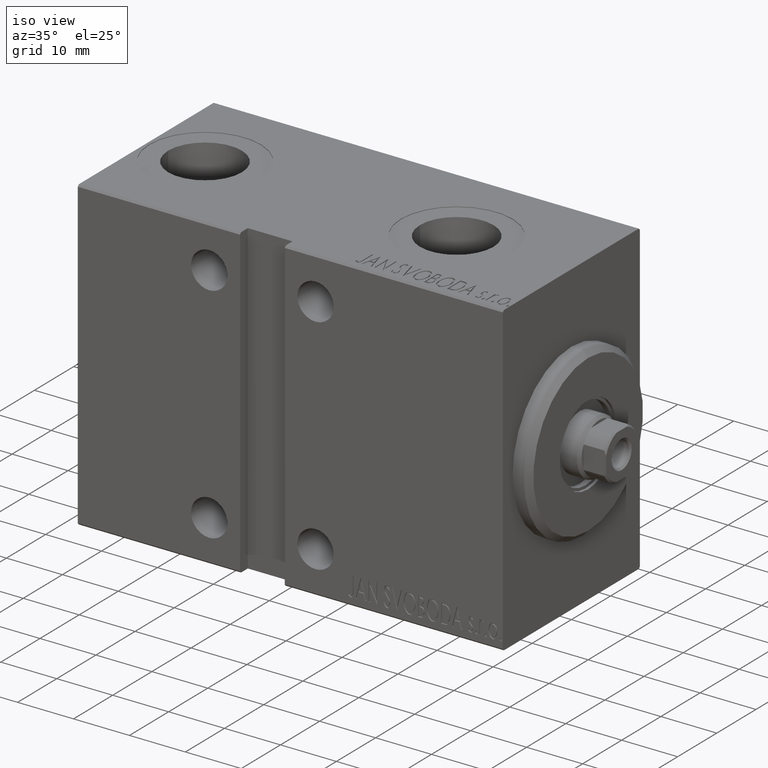
[diagram: clean part render]
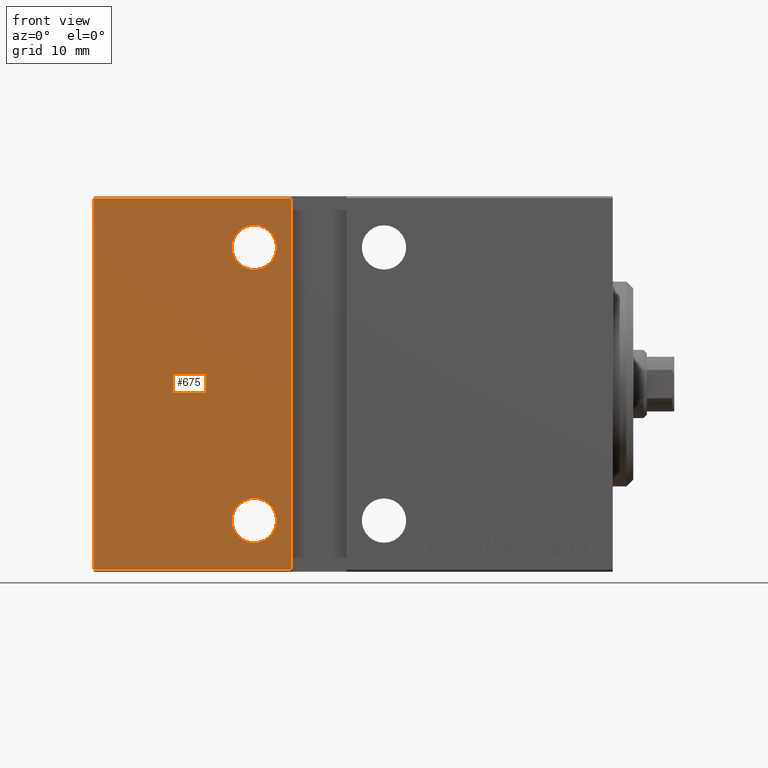
[diagram: tour spotlight — one face highlighted and labeled with its STEP entity id]
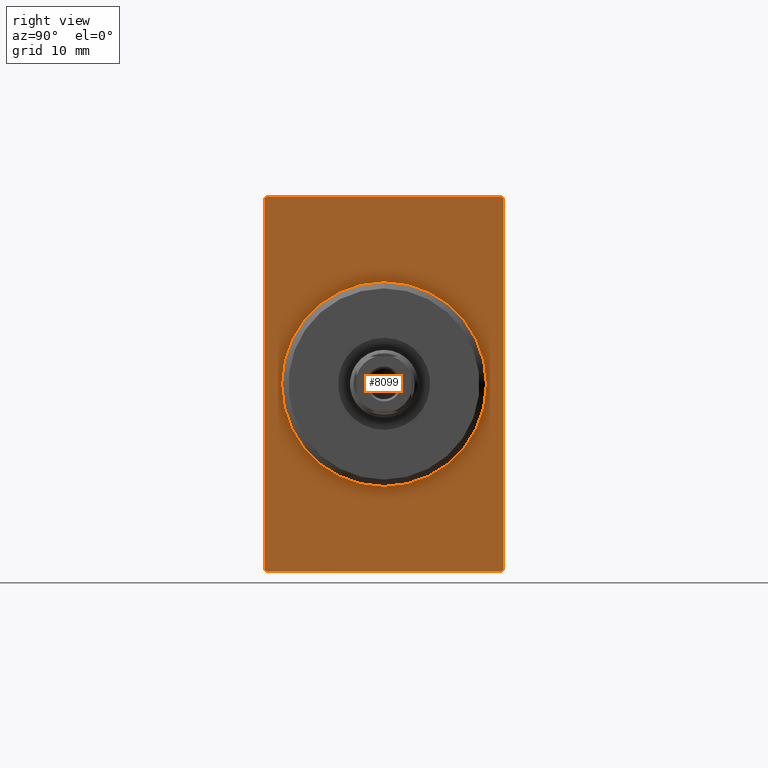
[diagram: tour spotlight — one face highlighted and labeled with its STEP entity id]
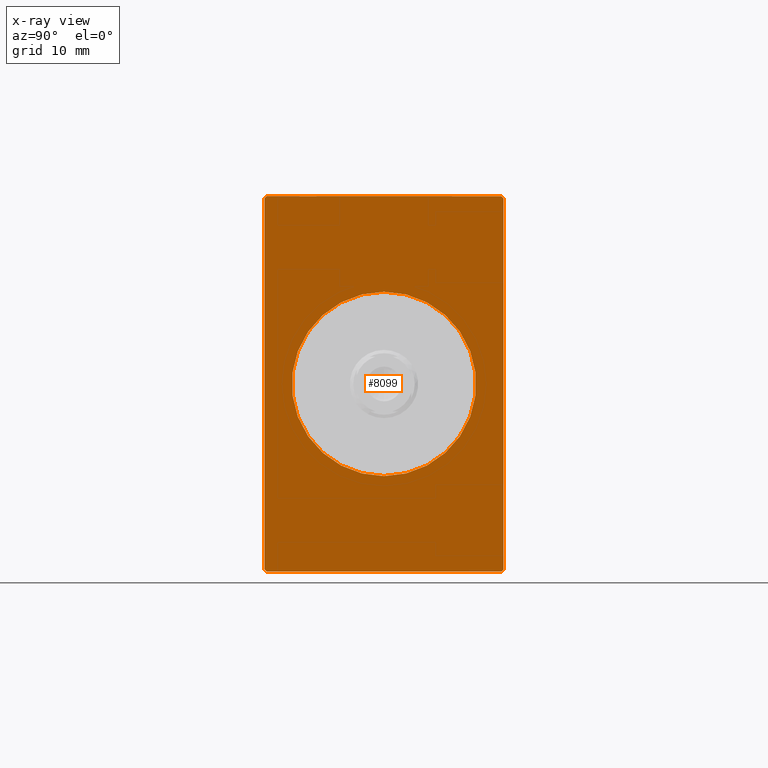
[diagram: x-ray of the same camera — body ghosted, this tour face saturated]
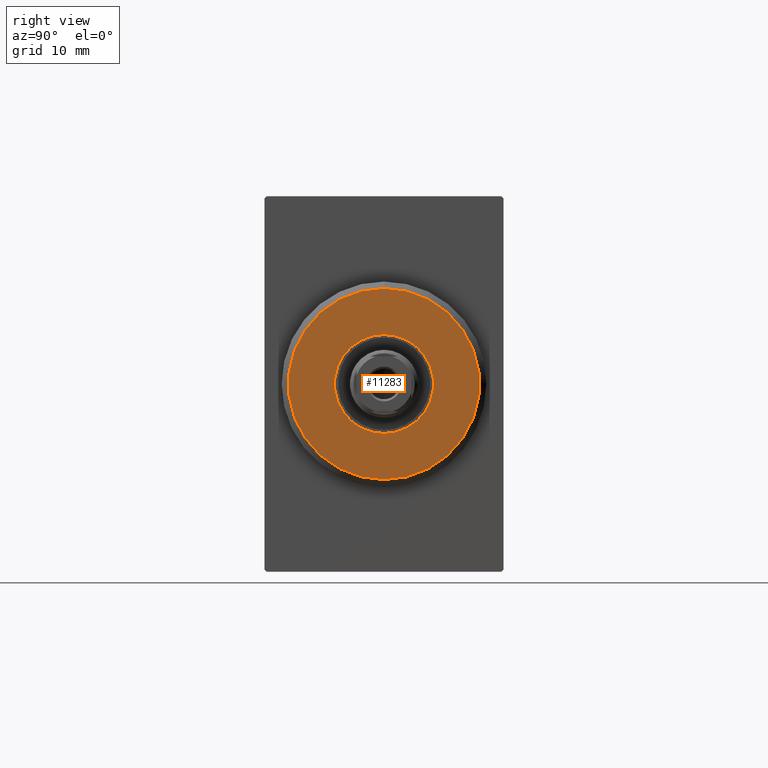
[diagram: tour spotlight — one face highlighted and labeled with its STEP entity id]
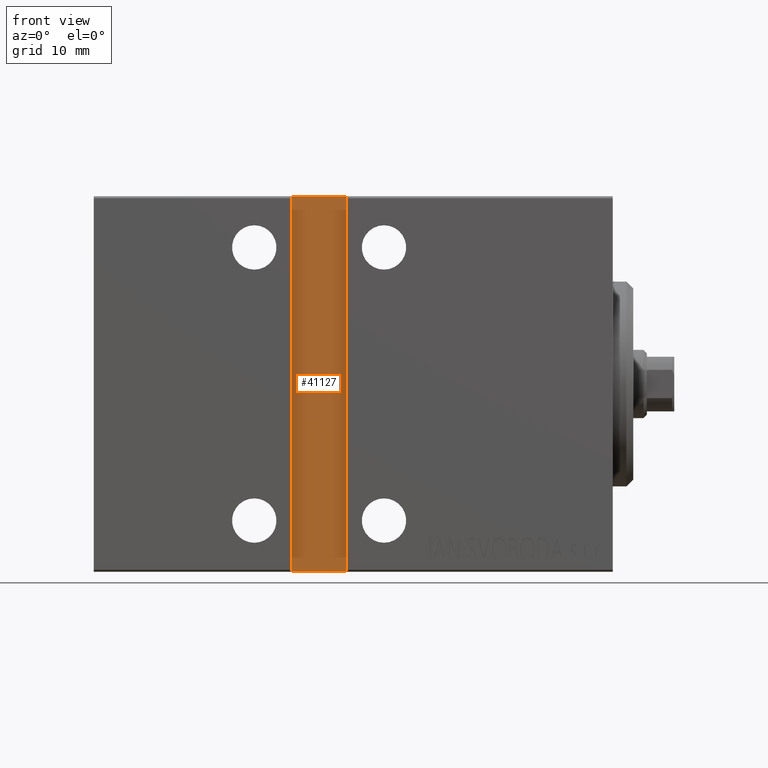
[diagram: tour spotlight — one face highlighted and labeled with its STEP entity id]
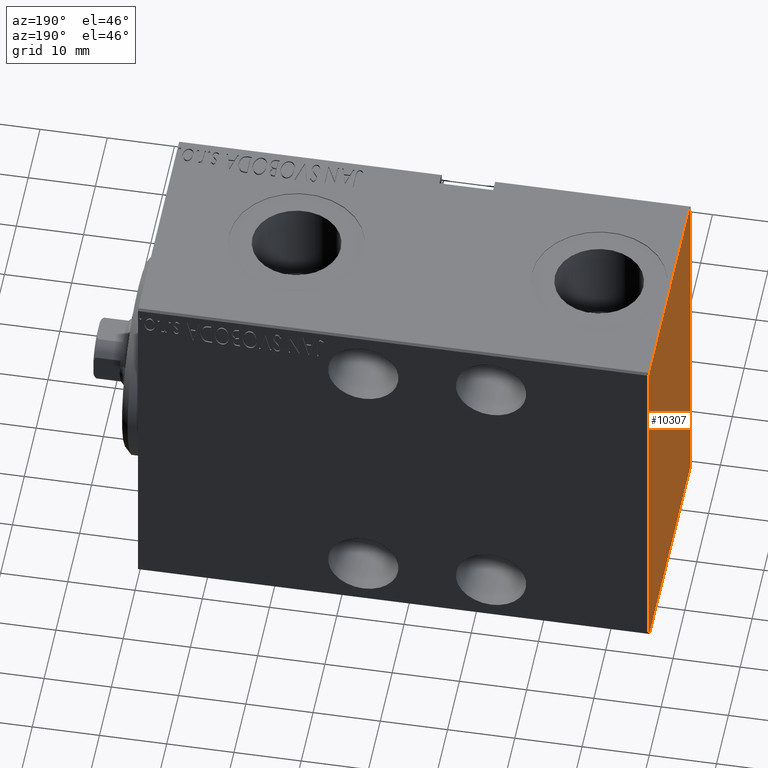
[diagram: tour spotlight — one face highlighted and labeled with its STEP entity id]
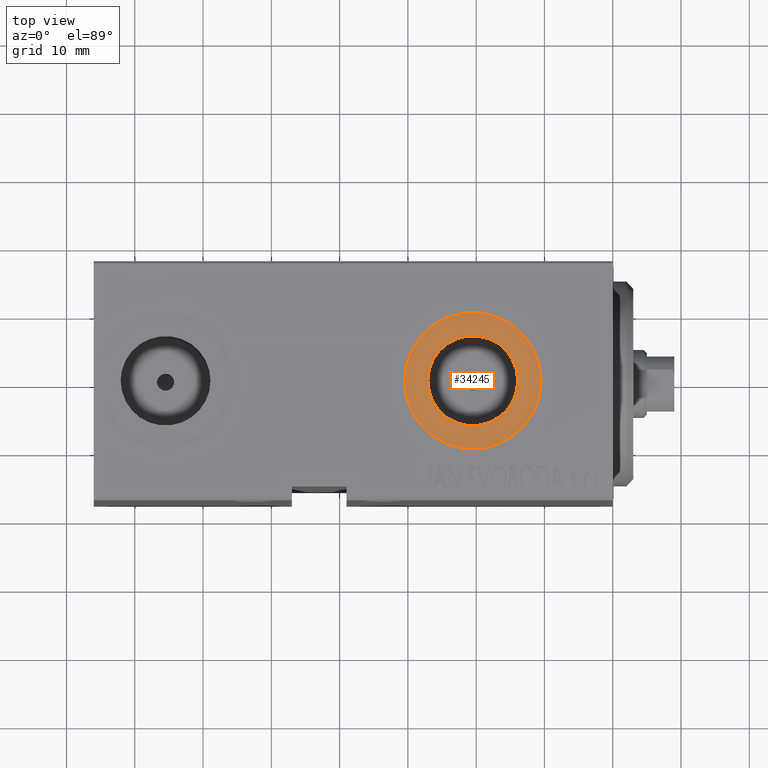
[diagram: tour spotlight — one face highlighted and labeled with its STEP entity id]
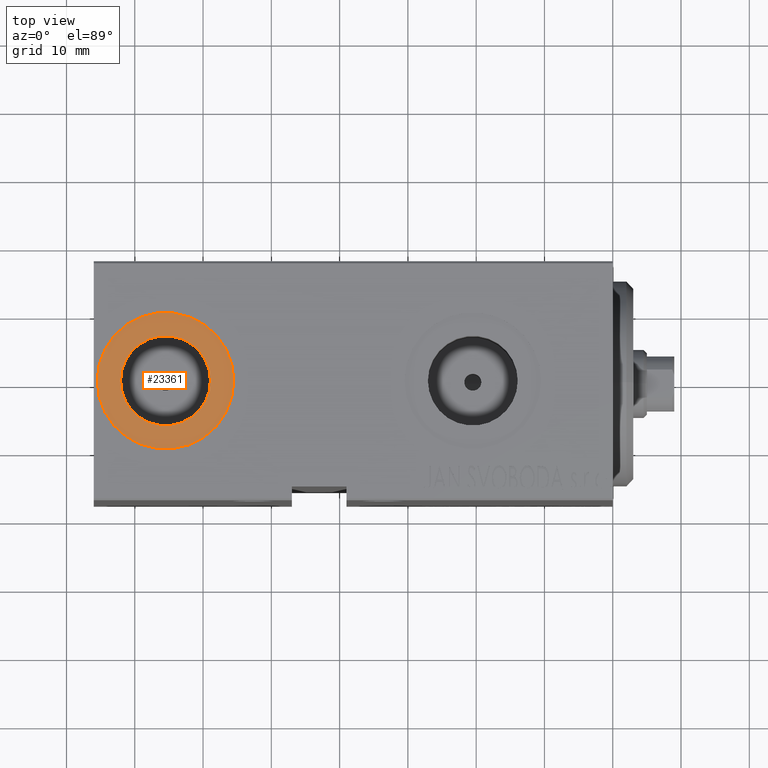
[diagram: tour spotlight — one face highlighted and labeled with its STEP entity id]
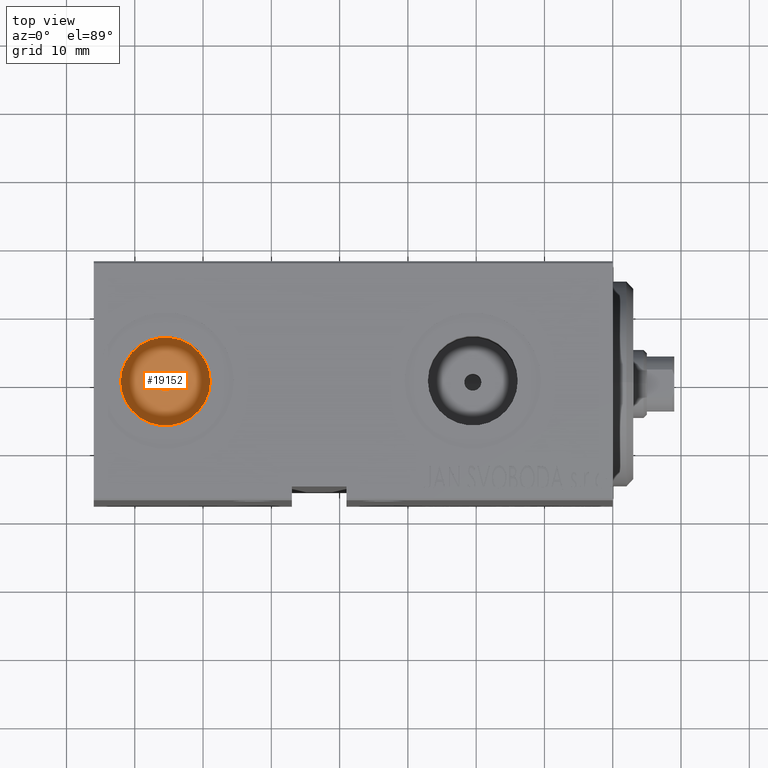
[diagram: tour spotlight — one face highlighted and labeled with its STEP entity id]
A machine part: a face-by-face anatomy tour. The part has 859 B-rep faces; the first image is the clean iso view, then the 8 largest visible faces are spotlighted one at a time (largest first), each with its STEP entity span.

Face 1 — front view, entity #675. In plain terms, the highlighted planar face has unit normal (-0, 1, -0).
Definition (entity closure, byte-faithful):
#391 = CARTESIAN_POINT ( 'NONE',  ( 76.00000000000000000, 17.49999999999999645, 27.20000000000002416 ) ) ;
#517 = EDGE_CURVE ( 'NONE', #23476, #31857, #22534, .T. ) ;
#675 = ADVANCED_FACE ( 'NONE', ( #34962, #4991, #14418 ), #34746, .F. ) ;
#754 = VERTEX_POINT ( 'NONE', #35397 ) ;
#916 = CARTESIAN_POINT ( 'NONE',  ( 52.50000000000000711, 17.49999999999999645, 16.75000000000000711 ) ) ;
#1579 = VERTEX_POINT ( 'NONE', #916 ) ;
#1710 = DIRECTION ( 'NONE',  ( 0.000000000000000000, -1.000000000000000000, -1.261617073437677752E-16 ) ) ;
#1892 = EDGE_CURVE ( 'NONE', #1579, #31087, #23712, .T. ) ;
#2507 = CARTESIAN_POINT ( 'NONE',  ( 52.50000000000000711, 17.49999999999999645, 23.25000000000000711 ) ) ;
#2706 = DIRECTION ( 'NONE',  ( 0.000000000000000000, 0.000000000000000000, -1.000000000000000000 ) ) ;
#3062 = EDGE_LOOP ( 'NONE', ( #29473, #30353 ) ) ;
#3614 = CARTESIAN_POINT ( 'NONE',  ( 47.00000000000000000, 17.50000000000000355, -27.20000000000000995 ) ) ;
#4563 = CARTESIAN_POINT ( 'NONE',  ( 47.00000000000000000, 17.50000000000000355, -27.49999999999997158 ) ) ;
#4844 = AXIS2_PLACEMENT_3D ( 'NONE', #36015, #38852, #15888 ) ;
#4991 = FACE_BOUND ( 'NONE', #3062, .T. ) ;
#5804 = ORIENTED_EDGE ( 'NONE', *, *, #517, .T. ) ;
#6566 = EDGE_CURVE ( 'NONE', #754, #31857, #33621, .T. ) ;
#7848 = DIRECTION ( 'NONE',  ( 0.000000000000000000, -1.000000000000000000, -1.261617073437677752E-16 ) ) ;
#8580 = AXIS2_PLACEMENT_3D ( 'NONE', #29795, #22373, #25867 ) ;
#10759 = CIRCLE ( 'NONE', #35203, 3.249999999999999556 ) ;
#11758 = LINE ( 'NONE', #4563, #40024 ) ;
#11978 = CARTESIAN_POINT ( 'NONE',  ( 76.00000000000000000, 17.50000000000000355, -27.50000000000000355 ) ) ;
#13148 = EDGE_LOOP ( 'NONE', ( #14401, #26815 ) ) ;
#14401 = ORIENTED_EDGE ( 'NONE', *, *, #24945, .T. ) ;
#14418 = FACE_OUTER_BOUND ( 'NONE', #30472, .T. ) ;
#14841 = DIRECTION ( 'NONE',  ( -1.261617073437678492E-16, 1.261617073437678492E-16, -1.000000000000000000 ) ) ;
#15240 = EDGE_CURVE ( 'NONE', #23476, #24059, #11758, .T. ) ;
#15349 = VECTOR ( 'NONE', #17641, 1000.000000000000000 ) ;
#15888 = DIRECTION ( 'NONE',  ( 0.000000000000000000, 0.000000000000000000, -1.000000000000000000 ) ) ;
#17641 = DIRECTION ( 'NONE',  ( 0.000000000000000000, -1.261617073437677752E-16, 1.000000000000000000 ) ) ;
#18774 = VECTOR ( 'NONE', #39612, 1000.000000000000000 ) ;
#19065 = CARTESIAN_POINT ( 'NONE',  ( 76.00000000000000000, 17.50000000000000355, -27.20000000000000995 ) ) ;
#20019 = EDGE_CURVE ( 'NONE', #40962, #25397, #32259, .T. ) ;
#21177 = DIRECTION ( 'NONE',  ( 0.000000000000000000, 0.000000000000000000, -1.000000000000000000 ) ) ;
#21262 = LINE ( 'NONE', #19065, #27573 ) ;
#21361 = CARTESIAN_POINT ( 'NONE',  ( 52.50000000000000711, 17.50000000000000355, -19.99999999999999645 ) ) ;
#22373 = DIRECTION ( 'NONE',  ( 0.000000000000000000, -1.000000000000000000, -1.261617073437677752E-16 ) ) ;
#22534 = LINE ( 'NONE', #26026, #18774 ) ;
#23476 = VERTEX_POINT ( 'NONE', #42347 ) ;
#23712 = CIRCLE ( 'NONE', #4844, 3.249999999999999556 ) ;
#24059 = VERTEX_POINT ( 'NONE', #3614 ) ;
#24945 = EDGE_CURVE ( 'NONE', #25397, #40962, #10759, .T. ) ;
#25045 = AXIS2_PLACEMENT_3D ( 'NONE', #11978, #1710, #31020 ) ;
#25397 = VERTEX_POINT ( 'NONE', #29968 ) ;
#25400 = DIRECTION ( 'NONE',  ( -1.000000000000000000, 0.000000000000000000, 0.000000000000000000 ) ) ;
#25521 = ORIENTED_EDGE ( 'NONE', *, *, #15240, .F. ) ;
#25867 = DIRECTION ( 'NONE',  ( 0.000000000000000000, 0.000000000000000000, -1.000000000000000000 ) ) ;
#26026 = CARTESIAN_POINT ( 'NONE',  ( 76.00000000000000000, 17.49999999999999645, 27.20000000000002416 ) ) ;
#26815 = ORIENTED_EDGE ( 'NONE', *, *, #20019, .T. ) ;
#27573 = VECTOR ( 'NONE', #25400, 1000.000000000000000 ) ;
#28134 = DIRECTION ( 'NONE',  ( 0.000000000000000000, -1.000000000000000000, -1.261617073437677752E-16 ) ) ;
#29473 = ORIENTED_EDGE ( 'NONE', *, *, #41518, .T. ) ;
#29795 = CARTESIAN_POINT ( 'NONE',  ( 52.50000000000000711, 17.49999999999999645, 20.00000000000000711 ) ) ;
#29968 = CARTESIAN_POINT ( 'NONE',  ( 52.50000000000000711, 17.50000000000000355, -16.74999999999999645 ) ) ;
#30353 = ORIENTED_EDGE ( 'NONE', *, *, #1892, .T. ) ;
#30472 = EDGE_LOOP ( 'NONE', ( #33252, #30858, #25521, #5804 ) ) ;
#30858 = ORIENTED_EDGE ( 'NONE', *, *, #31354, .T. ) ;
#31020 = DIRECTION ( 'NONE',  ( 0.000000000000000000, 1.261617073437677752E-16, -1.000000000000000000 ) ) ;
#31087 = VERTEX_POINT ( 'NONE', #2507 ) ;
#31354 = EDGE_CURVE ( 'NONE', #754, #24059, #21262, .T. ) ;
#31857 = VERTEX_POINT ( 'NONE', #391 ) ;
#32259 = CIRCLE ( 'NONE', #36505, 3.249999999999999556 ) ;
#33252 = ORIENTED_EDGE ( 'NONE', *, *, #6566, .F. ) ;
#33621 = LINE ( 'NONE', #41057, #15349 ) ;
#34746 = PLANE ( 'NONE',  #25045 ) ;
#34962 = FACE_BOUND ( 'NONE', #13148, .T. ) ;
#35203 = AXIS2_PLACEMENT_3D ( 'NONE', #21361, #28134, #2706 ) ;
#35397 = CARTESIAN_POINT ( 'NONE',  ( 76.00000000000000000, 17.50000000000000355, -27.20000000000000995 ) ) ;
#36015 = CARTESIAN_POINT ( 'NONE',  ( 52.50000000000000711, 17.49999999999999645, 20.00000000000000711 ) ) ;
#36505 = AXIS2_PLACEMENT_3D ( 'NONE', #41101, #7848, #21177 ) ;
#37871 = CIRCLE ( 'NONE', #8580, 3.249999999999999556 ) ;
#38852 = DIRECTION ( 'NONE',  ( 0.000000000000000000, -1.000000000000000000, -1.261617073437677752E-16 ) ) ;
#39612 = DIRECTION ( 'NONE',  ( 1.000000000000000000, 0.000000000000000000, 0.000000000000000000 ) ) ;
#40024 = VECTOR ( 'NONE', #14841, 1000.000000000000000 ) ;
#40896 = CARTESIAN_POINT ( 'NONE',  ( 52.50000000000000711, 17.50000000000000355, -23.24999999999999645 ) ) ;
#40962 = VERTEX_POINT ( 'NONE', #40896 ) ;
#41057 = CARTESIAN_POINT ( 'NONE',  ( 76.00000000000000000, 17.50000000000000355, -27.50000000000000355 ) ) ;
#41101 = CARTESIAN_POINT ( 'NONE',  ( 52.50000000000000711, 17.50000000000000355, -19.99999999999999645 ) ) ;
#41518 = EDGE_CURVE ( 'NONE', #31087, #1579, #37871, .T. ) ;
#42347 = CARTESIAN_POINT ( 'NONE',  ( 47.00000000000000711, 17.49999999999999645, 27.20000000000002771 ) ) ;

Face 2 — right view, entity #8099. An x-ray twin of the same camera follows (body ghosted, this face saturated) — the face is partly hidden behind the body. In plain terms, the highlighted planar face has unit normal (-1, 0, 0).
Definition (entity closure, byte-faithful):
#145 = ORIENTED_EDGE ( 'NONE', *, *, #8726, .T. ) ;
#177 = CARTESIAN_POINT ( 'NONE',  ( 0.000000000000000000, 17.49999999999999645, 27.20000000000002416 ) ) ;
#1064 = LINE ( 'NONE', #37592, #1502 ) ;
#1216 = ORIENTED_EDGE ( 'NONE', *, *, #42624, .T. ) ;
#1502 = VECTOR ( 'NONE', #37803, 1000.000000000000000 ) ;
#1646 = DIRECTION ( 'NONE',  ( 0.000000000000000000, -1.261617073437677752E-16, 1.000000000000000000 ) ) ;
#3391 = VERTEX_POINT ( 'NONE', #27198 ) ;
#4121 = DIRECTION ( 'NONE',  ( 0.000000000000000000, 1.000000000000000000, -9.912705577010325549E-17 ) ) ;
#4200 = DIRECTION ( 'NONE',  ( 1.000000000000000000, 0.000000000000000000, 0.000000000000000000 ) ) ;
#4379 = CARTESIAN_POINT ( 'NONE',  ( 0.000000000000000000, 0.000000000000000000, 0.000000000000000000 ) ) ;
#4603 = PLANE ( 'NONE',  #16789 ) ;
#5447 = EDGE_CURVE ( 'NONE', #18993, #30715, #31594, .T. ) ;
#6025 = LINE ( 'NONE', #12798, #14692 ) ;
#7087 = VECTOR ( 'NONE', #7529, 1000.000000000000114 ) ;
#7529 = DIRECTION ( 'NONE',  ( 0.000000000000000000, -0.7071067811865474617, -0.7071067811865474617 ) ) ;
#7616 = ORIENTED_EDGE ( 'NONE', *, *, #17792, .T. ) ;
#8026 = VECTOR ( 'NONE', #28373, 1000.000000000000000 ) ;
#8095 = CARTESIAN_POINT ( 'NONE',  ( 0.000000000000000000, -17.20000000000001705, -27.50000000000000000 ) ) ;
#8099 = ADVANCED_FACE ( 'NONE', ( #37428, #28412 ), #4603, .F. ) ;
#8310 = EDGE_CURVE ( 'NONE', #20790, #40207, #41086, .T. ) ;
#8473 = EDGE_LOOP ( 'NONE', ( #27398, #145, #9593, #39463, #34664, #36076, #32623, #1216 ) ) ;
#8726 = EDGE_CURVE ( 'NONE', #25333, #30715, #6025, .T. ) ;
#9593 = ORIENTED_EDGE ( 'NONE', *, *, #5447, .F. ) ;
#9727 = CARTESIAN_POINT ( 'NONE',  ( 0.000000000000000000, -17.49999999999999645, 27.49999999999999289 ) ) ;
#10810 = CARTESIAN_POINT ( 'NONE',  ( 0.000000000000000000, 17.50000000000000355, -27.20000000000000995 ) ) ;
#11159 = DIRECTION ( 'NONE',  ( 0.000000000000000000, 0.000000000000000000, -1.000000000000000000 ) ) ;
#12798 = CARTESIAN_POINT ( 'NONE',  ( 0.000000000000000000, 17.20000000000001705, 27.50000000000000000 ) ) ;
#12830 = CARTESIAN_POINT ( 'NONE',  ( 0.000000000000000000, -17.49999999999999645, 27.19999999999998508 ) ) ;
#13837 = DIRECTION ( 'NONE',  ( 0.000000000000000000, 0.000000000000000000, -1.000000000000000000 ) ) ;
#14692 = VECTOR ( 'NONE', #19563, 1000.000000000000000 ) ;
#15357 = EDGE_LOOP ( 'NONE', ( #24697, #7616 ) ) ;
#16443 = VERTEX_POINT ( 'NONE', #39309 ) ;
#16732 = LINE ( 'NONE', #10810, #7087 ) ;
#16789 = AXIS2_PLACEMENT_3D ( 'NONE', #4379, #17720, #11159 ) ;
#17041 = AXIS2_PLACEMENT_3D ( 'NONE', #30656, #4200, #13837 ) ;
#17720 = DIRECTION ( 'NONE',  ( 1.000000000000000000, 0.000000000000000000, 0.000000000000000000 ) ) ;
#17792 = EDGE_CURVE ( 'NONE', #18583, #16443, #33762, .T. ) ;
#18084 = VECTOR ( 'NONE', #1646, 1000.000000000000000 ) ;
#18153 = EDGE_CURVE ( 'NONE', #23261, #3391, #40338, .T. ) ;
#18583 = VERTEX_POINT ( 'NONE', #26498 ) ;
#18993 = VERTEX_POINT ( 'NONE', #40443 ) ;
#19151 = EDGE_CURVE ( 'NONE', #25333, #27334, #38235, .T. ) ;
#19563 = DIRECTION ( 'NONE',  ( -0.000000000000000000, 0.7071067811865516806, -0.7071067811865434649 ) ) ;
#20497 = AXIS2_PLACEMENT_3D ( 'NONE', #20791, #30843, #42611 ) ;
#20528 = CIRCLE ( 'NONE', #17041, 13.50000000000001243 ) ;
#20790 = VERTEX_POINT ( 'NONE', #8095 ) ;
#20791 = CARTESIAN_POINT ( 'NONE',  ( 0.000000000000000000, 0.000000000000000000, 0.000000000000000000 ) ) ;
#21119 = CARTESIAN_POINT ( 'NONE',  ( 0.000000000000000000, 17.20000000000000995, -27.50000000000000355 ) ) ;
#21282 = VECTOR ( 'NONE', #39490, 1000.000000000000000 ) ;
#22222 = CARTESIAN_POINT ( 'NONE',  ( 0.000000000000000000, -17.19999999999998863, 27.49999999999999289 ) ) ;
#23261 = VERTEX_POINT ( 'NONE', #42614 ) ;
#24020 = CARTESIAN_POINT ( 'NONE',  ( 0.000000000000000000, -17.49999999999999645, -27.50000000000000000 ) ) ;
#24383 = EDGE_CURVE ( 'NONE', #16443, #18583, #20528, .T. ) ;
#24697 = ORIENTED_EDGE ( 'NONE', *, *, #24383, .T. ) ;
#25333 = VERTEX_POINT ( 'NONE', #29542 ) ;
#26498 = CARTESIAN_POINT ( 'NONE',  ( 0.000000000000000000, 1.653273178848928444E-15, -13.50000000000001243 ) ) ;
#26803 = LINE ( 'NONE', #12830, #29525 ) ;
#27198 = CARTESIAN_POINT ( 'NONE',  ( 0.000000000000000000, -17.49999999999999645, -27.20000000000000639 ) ) ;
#27334 = VERTEX_POINT ( 'NONE', #22222 ) ;
#27398 = ORIENTED_EDGE ( 'NONE', *, *, #19151, .F. ) ;
#28373 = DIRECTION ( 'NONE',  ( 0.000000000000000000, -1.000000000000000000, -1.982541115402065356E-16 ) ) ;
#28412 = FACE_OUTER_BOUND ( 'NONE', #8473, .T. ) ;
#29525 = VECTOR ( 'NONE', #39732, 1000.000000000000114 ) ;
#29542 = CARTESIAN_POINT ( 'NONE',  ( 0.000000000000000000, 17.20000000000001705, 27.50000000000000000 ) ) ;
#30656 = CARTESIAN_POINT ( 'NONE',  ( 0.000000000000000000, 0.000000000000000000, 0.000000000000000000 ) ) ;
#30715 = VERTEX_POINT ( 'NONE', #177 ) ;
#30843 = DIRECTION ( 'NONE',  ( 1.000000000000000000, 0.000000000000000000, 0.000000000000000000 ) ) ;
#31594 = LINE ( 'NONE', #41907, #18084 ) ;
#31645 = CARTESIAN_POINT ( 'NONE',  ( 0.000000000000000000, 17.49999999999999645, 27.50000000000000000 ) ) ;
#32623 = ORIENTED_EDGE ( 'NONE', *, *, #18153, .F. ) ;
#33762 = CIRCLE ( 'NONE', #20497, 13.50000000000001243 ) ;
#34664 = ORIENTED_EDGE ( 'NONE', *, *, #8310, .F. ) ;
#36076 = ORIENTED_EDGE ( 'NONE', *, *, #39922, .T. ) ;
#37428 = FACE_BOUND ( 'NONE', #15357, .T. ) ;
#37592 = CARTESIAN_POINT ( 'NONE',  ( 0.000000000000000000, -17.20000000000001705, -27.50000000000000000 ) ) ;
#37803 = DIRECTION ( 'NONE',  ( -0.000000000000000000, -0.7071067811865311414, 0.7071067811865638930 ) ) ;
#38235 = LINE ( 'NONE', #31645, #8026 ) ;
#38347 = EDGE_CURVE ( 'NONE', #18993, #40207, #16732, .T. ) ;
#39134 = VECTOR ( 'NONE', #4121, 1000.000000000000000 ) ;
#39309 = CARTESIAN_POINT ( 'NONE',  ( 0.000000000000000000, 0.000000000000000000, 13.50000000000001243 ) ) ;
#39463 = ORIENTED_EDGE ( 'NONE', *, *, #38347, .T. ) ;
#39490 = DIRECTION ( 'NONE',  ( 0.000000000000000000, 0.000000000000000000, -1.000000000000000000 ) ) ;
#39732 = DIRECTION ( 'NONE',  ( -0.000000000000000000, 0.7071067811865474617, 0.7071067811865474617 ) ) ;
#39922 = EDGE_CURVE ( 'NONE', #20790, #3391, #1064, .T. ) ;
#40207 = VERTEX_POINT ( 'NONE', #21119 ) ;
#40338 = LINE ( 'NONE', #9727, #21282 ) ;
#40443 = CARTESIAN_POINT ( 'NONE',  ( 0.000000000000000000, 17.50000000000000355, -27.20000000000000995 ) ) ;
#41086 = LINE ( 'NONE', #24020, #39134 ) ;
#41907 = CARTESIAN_POINT ( 'NONE',  ( 0.000000000000000000, 17.50000000000000355, -27.50000000000000355 ) ) ;
#42611 = DIRECTION ( 'NONE',  ( 0.000000000000000000, 0.000000000000000000, -1.000000000000000000 ) ) ;
#42614 = CARTESIAN_POINT ( 'NONE',  ( 0.000000000000000000, -17.49999999999999645, 27.19999999999998508 ) ) ;
#42624 = EDGE_CURVE ( 'NONE', #23261, #27334, #26803, .T. ) ;

Face 3 — right view, entity #11283. In plain terms, the highlighted planar face has unit normal (1, 0, 0).
Definition (entity closure, byte-faithful):
#152 = VERTEX_POINT ( 'NONE', #8872 ) ;
#899 = DIRECTION ( 'NONE',  ( 0.000000000000000000, 0.000000000000000000, -1.000000000000000000 ) ) ;
#3702 = EDGE_CURVE ( 'NONE', #38434, #33717, #9011, .T. ) ;
#8872 = CARTESIAN_POINT ( 'NONE',  ( 3.000000000000000000, 8.878689293818310074E-16, 7.249999999999999112 ) ) ;
#9011 = CIRCLE ( 'NONE', #34822, 14.00000000000000355 ) ;
#9471 = DIRECTION ( 'NONE',  ( 1.000000000000000000, -0.000000000000000000, 0.000000000000000000 ) ) ;
#11283 = ADVANCED_FACE ( 'NONE', ( #39436, #19728 ), #33281, .T. ) ;
#11843 = ORIENTED_EDGE ( 'NONE', *, *, #3702, .T. ) ;
#13605 = CARTESIAN_POINT ( 'NONE',  ( 3.000000000000000000, 0.000000000000000000, 0.000000000000000000 ) ) ;
#14752 = AXIS2_PLACEMENT_3D ( 'NONE', #13605, #9471, #16462 ) ;
#15449 = DIRECTION ( 'NONE',  ( 0.000000000000000000, 0.000000000000000000, -1.000000000000000000 ) ) ;
#16462 = DIRECTION ( 'NONE',  ( 0.000000000000000000, 0.000000000000000000, -1.000000000000000000 ) ) ;
#18144 = CARTESIAN_POINT ( 'NONE',  ( 3.000000000000000000, 0.000000000000000000, 0.000000000000000000 ) ) ;
#19027 = CIRCLE ( 'NONE', #23247, 7.249999999999999112 ) ;
#19728 = FACE_BOUND ( 'NONE', #37798, .T. ) ;
#20770 = EDGE_CURVE ( 'NONE', #152, #35699, #19027, .T. ) ;
#23247 = AXIS2_PLACEMENT_3D ( 'NONE', #18144, #28853, #24713 ) ;
#24713 = DIRECTION ( 'NONE',  ( 0.000000000000000000, 0.000000000000000000, -1.000000000000000000 ) ) ;
#25231 = CARTESIAN_POINT ( 'NONE',  ( 3.000000000000000000, 0.000000000000000000, 14.00000000000000355 ) ) ;
#25842 = CARTESIAN_POINT ( 'NONE',  ( 3.000000000000000000, 0.000000000000000000, -7.249999999999999112 ) ) ;
#26483 = EDGE_CURVE ( 'NONE', #35699, #152, #27544, .T. ) ;
#26937 = CARTESIAN_POINT ( 'NONE',  ( 3.000000000000000000, 0.000000000000000000, 0.000000000000000000 ) ) ;
#27520 = EDGE_CURVE ( 'NONE', #33717, #38434, #30394, .T. ) ;
#27544 = CIRCLE ( 'NONE', #35934, 7.249999999999999112 ) ;
#27655 = CARTESIAN_POINT ( 'NONE',  ( 3.000000000000000000, 0.000000000000000000, 0.000000000000000000 ) ) ;
#28853 = DIRECTION ( 'NONE',  ( 1.000000000000000000, 0.000000000000000000, 0.000000000000000000 ) ) ;
#29798 = ORIENTED_EDGE ( 'NONE', *, *, #27520, .T. ) ;
#30394 = CIRCLE ( 'NONE', #40180, 14.00000000000000355 ) ;
#30639 = ORIENTED_EDGE ( 'NONE', *, *, #20770, .F. ) ;
#30847 = DIRECTION ( 'NONE',  ( 1.000000000000000000, -0.000000000000000000, 0.000000000000000000 ) ) ;
#32038 = DIRECTION ( 'NONE',  ( 1.000000000000000000, 0.000000000000000000, 0.000000000000000000 ) ) ;
#32173 = ORIENTED_EDGE ( 'NONE', *, *, #26483, .F. ) ;
#33281 = PLANE ( 'NONE',  #14752 ) ;
#33717 = VERTEX_POINT ( 'NONE', #25231 ) ;
#34822 = AXIS2_PLACEMENT_3D ( 'NONE', #26937, #30847, #899 ) ;
#35063 = CARTESIAN_POINT ( 'NONE',  ( 3.000000000000000000, 1.775737858763662015E-15, -14.00000000000000355 ) ) ;
#35566 = CARTESIAN_POINT ( 'NONE',  ( 3.000000000000000000, 0.000000000000000000, 0.000000000000000000 ) ) ;
#35699 = VERTEX_POINT ( 'NONE', #25842 ) ;
#35934 = AXIS2_PLACEMENT_3D ( 'NONE', #35566, #32038, #15449 ) ;
#37722 = DIRECTION ( 'NONE',  ( 0.000000000000000000, 0.000000000000000000, -1.000000000000000000 ) ) ;
#37798 = EDGE_LOOP ( 'NONE', ( #32173, #30639 ) ) ;
#38434 = VERTEX_POINT ( 'NONE', #35063 ) ;
#39436 = FACE_OUTER_BOUND ( 'NONE', #43056, .T. ) ;
#40180 = AXIS2_PLACEMENT_3D ( 'NONE', #27655, #41015, #37722 ) ;
#41015 = DIRECTION ( 'NONE',  ( 1.000000000000000000, -0.000000000000000000, 0.000000000000000000 ) ) ;
#43056 = EDGE_LOOP ( 'NONE', ( #29798, #11843 ) ) ;

Face 4 — front view, entity #41127. In plain terms, the highlighted planar face has unit normal (-0, 1, -0).
Definition (entity closure, byte-faithful):
#111 = VECTOR ( 'NONE', #3922, 1000.000000000000000 ) ;
#381 = CARTESIAN_POINT ( 'NONE',  ( 0.000000000000000000, 15.50000000000000178, 1.955506463828401872E-15 ) ) ;
#609 = CARTESIAN_POINT ( 'NONE',  ( 47.00000000000000711, 15.49999999999999822, 27.50000000000000000 ) ) ;
#1021 = FACE_OUTER_BOUND ( 'NONE', #24315, .T. ) ;
#1496 = ORIENTED_EDGE ( 'NONE', *, *, #39965, .T. ) ;
#2413 = CARTESIAN_POINT ( 'NONE',  ( 39.00000000000000711, 15.50000000000000533, -27.49999999999997158 ) ) ;
#3654 = VECTOR ( 'NONE', #41206, 1000.000000000000000 ) ;
#3922 = DIRECTION ( 'NONE',  ( -1.261617073437678492E-16, 1.261617073437678492E-16, -1.000000000000000000 ) ) ;
#4515 = DIRECTION ( 'NONE',  ( 0.000000000000000000, -1.000000000000000000, -1.261617073437678492E-16 ) ) ;
#7205 = LINE ( 'NONE', #11331, #111 ) ;
#9396 = CARTESIAN_POINT ( 'NONE',  ( 39.00000000000000711, 15.50000000000000533, -27.49999999999997158 ) ) ;
#10981 = ORIENTED_EDGE ( 'NONE', *, *, #18953, .T. ) ;
#11331 = CARTESIAN_POINT ( 'NONE',  ( 47.00000000000000000, 15.50000000000000533, -27.49999999999997158 ) ) ;
#12628 = ORIENTED_EDGE ( 'NONE', *, *, #40758, .T. ) ;
#12743 = AXIS2_PLACEMENT_3D ( 'NONE', #381, #4515, #14370 ) ;
#12928 = EDGE_CURVE ( 'NONE', #29464, #33511, #35259, .T. ) ;
#13335 = DIRECTION ( 'NONE',  ( 0.000000000000000000, -1.261617073437678492E-16, 1.000000000000000000 ) ) ;
#13571 = CARTESIAN_POINT ( 'NONE',  ( 47.00000000000000711, 15.50000000000001066, -27.50000000000000355 ) ) ;
#14370 = DIRECTION ( 'NONE',  ( 0.000000000000000000, 1.261617073437678492E-16, -1.000000000000000000 ) ) ;
#18953 = EDGE_CURVE ( 'NONE', #34416, #29464, #35869, .T. ) ;
#19916 = VECTOR ( 'NONE', #13335, 1000.000000000000000 ) ;
#22756 = LINE ( 'NONE', #27841, #3654 ) ;
#24315 = EDGE_LOOP ( 'NONE', ( #10981, #31205, #1496, #12628 ) ) ;
#27594 = CARTESIAN_POINT ( 'NONE',  ( 39.00000000000000711, 15.49999999999999822, 27.50000000000000000 ) ) ;
#27841 = CARTESIAN_POINT ( 'NONE',  ( 47.00000000000000000, 15.50000000000000533, -27.49999999999997158 ) ) ;
#29464 = VERTEX_POINT ( 'NONE', #27594 ) ;
#31205 = ORIENTED_EDGE ( 'NONE', *, *, #12928, .T. ) ;
#31616 = VERTEX_POINT ( 'NONE', #13571 ) ;
#32172 = CARTESIAN_POINT ( 'NONE',  ( 47.00000000000000711, 15.49999999999999822, 27.50000000000000000 ) ) ;
#33511 = VERTEX_POINT ( 'NONE', #609 ) ;
#34416 = VERTEX_POINT ( 'NONE', #9396 ) ;
#35259 = LINE ( 'NONE', #32172, #40642 ) ;
#35480 = DIRECTION ( 'NONE',  ( 1.000000000000000000, -0.000000000000000000, -0.000000000000000000 ) ) ;
#35869 = LINE ( 'NONE', #2413, #19916 ) ;
#37762 = PLANE ( 'NONE',  #12743 ) ;
#39965 = EDGE_CURVE ( 'NONE', #33511, #31616, #7205, .T. ) ;
#40642 = VECTOR ( 'NONE', #35480, 1000.000000000000000 ) ;
#40758 = EDGE_CURVE ( 'NONE', #31616, #34416, #22756, .T. ) ;
#41127 = ADVANCED_FACE ( 'NONE', ( #1021 ), #37762, .F. ) ;
#41206 = DIRECTION ( 'NONE',  ( -1.000000000000000000, 0.000000000000000000, 0.000000000000000000 ) ) ;

Face 5 — auxiliary view, entity #10307. In plain terms, the highlighted planar face has unit normal (-1, 0, 0).
Definition (entity closure, byte-faithful):
#202 = CARTESIAN_POINT ( 'NONE',  ( 76.00000000000000000, 22.34999999999990905, 22.35000000000016840 ) ) ;
#391 = CARTESIAN_POINT ( 'NONE',  ( 76.00000000000000000, 17.49999999999999645, 27.20000000000002416 ) ) ;
#754 = VERTEX_POINT ( 'NONE', #35397 ) ;
#1799 = DIRECTION ( 'NONE',  ( 1.000000000000000000, 0.000000000000000000, 0.000000000000000000 ) ) ;
#1851 = CARTESIAN_POINT ( 'NONE',  ( 76.00000000000000000, -22.35000000000040643, -22.34999999999936904 ) ) ;
#2678 = LINE ( 'NONE', #39653, #30701 ) ;
#3567 = EDGE_CURVE ( 'NONE', #22712, #19549, #2678, .T. ) ;
#3697 = DIRECTION ( 'NONE',  ( 0.000000000000000000, 0.000000000000000000, -1.000000000000000000 ) ) ;
#3781 = EDGE_CURVE ( 'NONE', #15082, #754, #5032, .T. ) ;
#4593 = ORIENTED_EDGE ( 'NONE', *, *, #17222, .T. ) ;
#4848 = VERTEX_POINT ( 'NONE', #14630 ) ;
#5032 = LINE ( 'NONE', #12021, #11100 ) ;
#5670 = AXIS2_PLACEMENT_3D ( 'NONE', #21692, #1799, #15149 ) ;
#6566 = EDGE_CURVE ( 'NONE', #754, #31857, #33621, .T. ) ;
#6657 = VECTOR ( 'NONE', #30584, 1000.000000000000000 ) ;
#8540 = LINE ( 'NONE', #21873, #32283 ) ;
#10307 = ADVANCED_FACE ( 'NONE', ( #28256 ), #31960, .T. ) ;
#11100 = VECTOR ( 'NONE', #18371, 1000.000000000000114 ) ;
#11482 = DIRECTION ( 'NONE',  ( -0.000000000000000000, 0.7071067811865311414, -0.7071067811865638930 ) ) ;
#12021 = CARTESIAN_POINT ( 'NONE',  ( 76.00000000000000000, 22.35000000000000853, -22.35000000000000853 ) ) ;
#12756 = VECTOR ( 'NONE', #3697, 1000.000000000000000 ) ;
#13030 = LINE ( 'NONE', #30496, #21092 ) ;
#14258 = EDGE_CURVE ( 'NONE', #19549, #19425, #36526, .T. ) ;
#14630 = CARTESIAN_POINT ( 'NONE',  ( 76.00000000000000000, -17.20000000000001705, -27.50000000000000000 ) ) ;
#15042 = EDGE_CURVE ( 'NONE', #4848, #15082, #8540, .T. ) ;
#15082 = VERTEX_POINT ( 'NONE', #32585 ) ;
#15149 = DIRECTION ( 'NONE',  ( 0.000000000000000000, 0.000000000000000000, -1.000000000000000000 ) ) ;
#15349 = VECTOR ( 'NONE', #17641, 1000.000000000000000 ) ;
#15663 = CARTESIAN_POINT ( 'NONE',  ( 76.00000000000000000, -17.49999999999999645, -27.20000000000000639 ) ) ;
#17222 = EDGE_CURVE ( 'NONE', #19425, #4848, #21970, .T. ) ;
#17641 = DIRECTION ( 'NONE',  ( 0.000000000000000000, -1.261617073437677752E-16, 1.000000000000000000 ) ) ;
#18203 = ORIENTED_EDGE ( 'NONE', *, *, #6566, .T. ) ;
#18371 = DIRECTION ( 'NONE',  ( -0.000000000000000000, 0.7071067811865474617, 0.7071067811865474617 ) ) ;
#18594 = DIRECTION ( 'NONE',  ( 0.000000000000000000, 1.000000000000000000, -9.912705577010325549E-17 ) ) ;
#19038 = EDGE_CURVE ( 'NONE', #31857, #39861, #37386, .T. ) ;
#19425 = VERTEX_POINT ( 'NONE', #15663 ) ;
#19549 = VERTEX_POINT ( 'NONE', #42998 ) ;
#21092 = VECTOR ( 'NONE', #37503, 1000.000000000000000 ) ;
#21519 = ORIENTED_EDGE ( 'NONE', *, *, #3781, .T. ) ;
#21692 = CARTESIAN_POINT ( 'NONE',  ( 76.00000000000000000, 0.000000000000000000, 0.000000000000000000 ) ) ;
#21873 = CARTESIAN_POINT ( 'NONE',  ( 76.00000000000000000, -17.49999999999999645, -27.50000000000000000 ) ) ;
#21970 = LINE ( 'NONE', #1851, #22586 ) ;
#22586 = VECTOR ( 'NONE', #11482, 1000.000000000000000 ) ;
#22712 = VERTEX_POINT ( 'NONE', #35928 ) ;
#27090 = CARTESIAN_POINT ( 'NONE',  ( 76.00000000000000000, -17.49999999999999645, 27.49999999999999289 ) ) ;
#27151 = ORIENTED_EDGE ( 'NONE', *, *, #14258, .T. ) ;
#28256 = FACE_OUTER_BOUND ( 'NONE', #41203, .T. ) ;
#30496 = CARTESIAN_POINT ( 'NONE',  ( 76.00000000000000000, 17.49999999999999645, 27.50000000000000000 ) ) ;
#30584 = DIRECTION ( 'NONE',  ( -0.000000000000000000, -0.7071067811865516806, 0.7071067811865434649 ) ) ;
#30701 = VECTOR ( 'NONE', #39434, 1000.000000000000114 ) ;
#31212 = CARTESIAN_POINT ( 'NONE',  ( 76.00000000000000000, 17.20000000000001705, 27.50000000000000000 ) ) ;
#31857 = VERTEX_POINT ( 'NONE', #391 ) ;
#31960 = PLANE ( 'NONE',  #5670 ) ;
#32283 = VECTOR ( 'NONE', #18594, 1000.000000000000000 ) ;
#32585 = CARTESIAN_POINT ( 'NONE',  ( 76.00000000000000000, 17.20000000000000995, -27.50000000000000355 ) ) ;
#32963 = ORIENTED_EDGE ( 'NONE', *, *, #3567, .T. ) ;
#33621 = LINE ( 'NONE', #41057, #15349 ) ;
#34978 = ORIENTED_EDGE ( 'NONE', *, *, #19038, .T. ) ;
#35397 = CARTESIAN_POINT ( 'NONE',  ( 76.00000000000000000, 17.50000000000000355, -27.20000000000000995 ) ) ;
#35928 = CARTESIAN_POINT ( 'NONE',  ( 76.00000000000000000, -17.19999999999998863, 27.49999999999999289 ) ) ;
#36526 = LINE ( 'NONE', #27090, #12756 ) ;
#37386 = LINE ( 'NONE', #202, #6657 ) ;
#37503 = DIRECTION ( 'NONE',  ( 0.000000000000000000, -1.000000000000000000, -1.982541115402065356E-16 ) ) ;
#38778 = ORIENTED_EDGE ( 'NONE', *, *, #41303, .T. ) ;
#39434 = DIRECTION ( 'NONE',  ( 0.000000000000000000, -0.7071067811865474617, -0.7071067811865474617 ) ) ;
#39445 = ORIENTED_EDGE ( 'NONE', *, *, #15042, .T. ) ;
#39653 = CARTESIAN_POINT ( 'NONE',  ( 76.00000000000000000, -22.34999999999998721, 22.34999999999998721 ) ) ;
#39861 = VERTEX_POINT ( 'NONE', #31212 ) ;
#41057 = CARTESIAN_POINT ( 'NONE',  ( 76.00000000000000000, 17.50000000000000355, -27.50000000000000355 ) ) ;
#41203 = EDGE_LOOP ( 'NONE', ( #39445, #21519, #18203, #34978, #38778, #32963, #27151, #4593 ) ) ;
#41303 = EDGE_CURVE ( 'NONE', #39861, #22712, #13030, .T. ) ;
#42998 = CARTESIAN_POINT ( 'NONE',  ( 76.00000000000000000, -17.49999999999999645, 27.19999999999998508 ) ) ;

Face 6 — top view, entity #34245. In plain terms, the highlighted planar face has unit normal (0, 0, 1).
Definition (entity closure, byte-faithful):
#237 = FACE_BOUND ( 'NONE', #6049, .T. ) ;
#521 = DIRECTION ( 'NONE',  ( 1.000000000000000000, 0.000000000000000000, 0.000000000000000000 ) ) ;
#1962 = DIRECTION ( 'NONE',  ( 1.000000000000000000, 0.000000000000000000, 0.000000000000000000 ) ) ;
#2256 = EDGE_CURVE ( 'NONE', #20955, #2359, #37674, .T. ) ;
#2359 = VERTEX_POINT ( 'NONE', #28962 ) ;
#3684 = CIRCLE ( 'NONE', #26719, 6.579999999999999183 ) ;
#3807 = CARTESIAN_POINT ( 'NONE',  ( 20.50000000000000000, -5.451988067355679890E-15, 27.39999999999999858 ) ) ;
#5249 = CARTESIAN_POINT ( 'NONE',  ( 13.92000000000000171, 8.058175938389579572E-16, 27.39999999999999858 ) ) ;
#6049 = EDGE_LOOP ( 'NONE', ( #13847, #37927 ) ) ;
#8160 = ORIENTED_EDGE ( 'NONE', *, *, #2256, .T. ) ;
#10512 = VERTEX_POINT ( 'NONE', #5249 ) ;
#10941 = DIRECTION ( 'NONE',  ( 1.000000000000000000, 0.000000000000000000, -0.000000000000000000 ) ) ;
#13586 = PLANE ( 'NONE',  #30415 ) ;
#13847 = ORIENTED_EDGE ( 'NONE', *, *, #16657, .F. ) ;
#16657 = EDGE_CURVE ( 'NONE', #41182, #10512, #34447, .T. ) ;
#16729 = AXIS2_PLACEMENT_3D ( 'NONE', #31914, #38073, #1962 ) ;
#19961 = DIRECTION ( 'NONE',  ( 1.000000000000000000, 0.000000000000000000, 0.000000000000000000 ) ) ;
#20955 = VERTEX_POINT ( 'NONE', #34284 ) ;
#21861 = AXIS2_PLACEMENT_3D ( 'NONE', #3807, #23911, #521 ) ;
#22546 = EDGE_CURVE ( 'NONE', #2359, #20955, #29546, .T. ) ;
#23911 = DIRECTION ( 'NONE',  ( 0.000000000000000000, 0.000000000000000000, 1.000000000000000000 ) ) ;
#24373 = ORIENTED_EDGE ( 'NONE', *, *, #22546, .T. ) ;
#24483 = DIRECTION ( 'NONE',  ( 0.000000000000000000, 0.000000000000000000, 1.000000000000000000 ) ) ;
#26719 = AXIS2_PLACEMENT_3D ( 'NONE', #42526, #36604, #19961 ) ;
#28962 = CARTESIAN_POINT ( 'NONE',  ( 30.50000000000000711, -5.451988067355679890E-15, 27.39999999999999858 ) ) ;
#29546 = CIRCLE ( 'NONE', #21861, 10.00000000000000533 ) ;
#30415 = AXIS2_PLACEMENT_3D ( 'NONE', #36986, #24483, #10941 ) ;
#31359 = CARTESIAN_POINT ( 'NONE',  ( 20.50000000000000000, 0.000000000000000000, 27.39999999999999858 ) ) ;
#31914 = CARTESIAN_POINT ( 'NONE',  ( 20.50000000000000000, -5.451988067355679890E-15, 27.39999999999999858 ) ) ;
#34245 = ADVANCED_FACE ( 'NONE', ( #237, #36778 ), #13586, .T. ) ;
#34284 = CARTESIAN_POINT ( 'NONE',  ( 10.49999999999999467, -4.227341268208326831E-15, 27.39999999999999858 ) ) ;
#34447 = CIRCLE ( 'NONE', #36560, 6.579999999999999183 ) ;
#36560 = AXIS2_PLACEMENT_3D ( 'NONE', #31359, #41028, #41674 ) ;
#36604 = DIRECTION ( 'NONE',  ( 0.000000000000000000, 0.000000000000000000, 1.000000000000000000 ) ) ;
#36778 = FACE_OUTER_BOUND ( 'NONE', #37277, .T. ) ;
#36986 = CARTESIAN_POINT ( 'NONE',  ( 20.50000000000000000, -5.451988067355679890E-15, 27.39999999999999858 ) ) ;
#37277 = EDGE_LOOP ( 'NONE', ( #24373, #8160 ) ) ;
#37674 = CIRCLE ( 'NONE', #16729, 10.00000000000000533 ) ;
#37927 = ORIENTED_EDGE ( 'NONE', *, *, #42346, .F. ) ;
#38073 = DIRECTION ( 'NONE',  ( 0.000000000000000000, 0.000000000000000000, 1.000000000000000000 ) ) ;
#41028 = DIRECTION ( 'NONE',  ( 0.000000000000000000, 0.000000000000000000, 1.000000000000000000 ) ) ;
#41182 = VERTEX_POINT ( 'NONE', #41701 ) ;
#41674 = DIRECTION ( 'NONE',  ( 1.000000000000000000, 0.000000000000000000, 0.000000000000000000 ) ) ;
#41701 = CARTESIAN_POINT ( 'NONE',  ( 27.07999999999999829, 0.000000000000000000, 27.39999999999999858 ) ) ;
#42346 = EDGE_CURVE ( 'NONE', #10512, #41182, #3684, .T. ) ;
#42526 = CARTESIAN_POINT ( 'NONE',  ( 20.50000000000000000, 0.000000000000000000, 27.39999999999999858 ) ) ;

Face 7 — top view, entity #23361. In plain terms, the highlighted planar face has unit normal (0, 0, 1).
Definition (entity closure, byte-faithful):
#608 = AXIS2_PLACEMENT_3D ( 'NONE', #42239, #22313, #9421 ) ;
#2670 = DIRECTION ( 'NONE',  ( 1.000000000000000000, 0.000000000000000000, 0.000000000000000000 ) ) ;
#4541 = CIRCLE ( 'NONE', #19904, 6.580000000000002736 ) ;
#4657 = EDGE_CURVE ( 'NONE', #25416, #25120, #39047, .T. ) ;
#7777 = EDGE_CURVE ( 'NONE', #27885, #8344, #41930, .T. ) ;
#8344 = VERTEX_POINT ( 'NONE', #30788 ) ;
#8563 = CARTESIAN_POINT ( 'NONE',  ( 72.07999999999999829, -5.451988067355679890E-15, 27.39999999999999858 ) ) ;
#9421 = DIRECTION ( 'NONE',  ( 1.000000000000000000, 0.000000000000000000, 0.000000000000000000 ) ) ;
#9804 = ORIENTED_EDGE ( 'NONE', *, *, #4657, .T. ) ;
#10639 = DIRECTION ( 'NONE',  ( 0.000000000000000000, 0.000000000000000000, 1.000000000000000000 ) ) ;
#10856 = PLANE ( 'NONE',  #35176 ) ;
#10999 = ORIENTED_EDGE ( 'NONE', *, *, #15338, .T. ) ;
#13923 = FACE_OUTER_BOUND ( 'NONE', #32689, .T. ) ;
#15338 = EDGE_CURVE ( 'NONE', #25120, #25416, #23954, .T. ) ;
#19084 = ORIENTED_EDGE ( 'NONE', *, *, #27493, .F. ) ;
#19904 = AXIS2_PLACEMENT_3D ( 'NONE', #23946, #30931, #34659 ) ;
#19969 = CARTESIAN_POINT ( 'NONE',  ( 75.50000000000000000, -5.451988067355679890E-15, 27.39999999999999858 ) ) ;
#22313 = DIRECTION ( 'NONE',  ( 0.000000000000000000, 0.000000000000000000, 1.000000000000000000 ) ) ;
#23332 = CARTESIAN_POINT ( 'NONE',  ( 65.50000000000000000, -5.451988067355679890E-15, 27.39999999999999858 ) ) ;
#23361 = ADVANCED_FACE ( 'NONE', ( #33822, #13923 ), #10856, .T. ) ;
#23946 = CARTESIAN_POINT ( 'NONE',  ( 65.50000000000000000, -5.451988067355679890E-15, 27.39999999999999858 ) ) ;
#23954 = CIRCLE ( 'NONE', #28825, 9.999999999999994671 ) ;
#24957 = EDGE_LOOP ( 'NONE', ( #39231, #19084 ) ) ;
#25120 = VERTEX_POINT ( 'NONE', #19969 ) ;
#25416 = VERTEX_POINT ( 'NONE', #26913 ) ;
#25622 = DIRECTION ( 'NONE',  ( 0.000000000000000000, 0.000000000000000000, 1.000000000000000000 ) ) ;
#25972 = CARTESIAN_POINT ( 'NONE',  ( 65.50000000000000000, -5.451988067355679890E-15, 27.39999999999999858 ) ) ;
#26825 = DIRECTION ( 'NONE',  ( 1.000000000000000000, 0.000000000000000000, -0.000000000000000000 ) ) ;
#26913 = CARTESIAN_POINT ( 'NONE',  ( 55.50000000000000711, -4.227341268208327620E-15, 27.39999999999999858 ) ) ;
#27493 = EDGE_CURVE ( 'NONE', #8344, #27885, #4541, .T. ) ;
#27885 = VERTEX_POINT ( 'NONE', #8563 ) ;
#28817 = DIRECTION ( 'NONE',  ( 1.000000000000000000, 0.000000000000000000, 0.000000000000000000 ) ) ;
#28825 = AXIS2_PLACEMENT_3D ( 'NONE', #25972, #42843, #28817 ) ;
#30788 = CARTESIAN_POINT ( 'NONE',  ( 58.92000000000000171, -4.646170473516720848E-15, 27.39999999999999858 ) ) ;
#30931 = DIRECTION ( 'NONE',  ( 0.000000000000000000, 0.000000000000000000, 1.000000000000000000 ) ) ;
#32689 = EDGE_LOOP ( 'NONE', ( #10999, #9804 ) ) ;
#32827 = AXIS2_PLACEMENT_3D ( 'NONE', #35701, #25622, #2670 ) ;
#33822 = FACE_BOUND ( 'NONE', #24957, .T. ) ;
#34659 = DIRECTION ( 'NONE',  ( 1.000000000000000000, 0.000000000000000000, 0.000000000000000000 ) ) ;
#35176 = AXIS2_PLACEMENT_3D ( 'NONE', #23332, #10639, #26825 ) ;
#35701 = CARTESIAN_POINT ( 'NONE',  ( 65.50000000000000000, -5.451988067355679890E-15, 27.39999999999999858 ) ) ;
#39047 = CIRCLE ( 'NONE', #608, 9.999999999999994671 ) ;
#39231 = ORIENTED_EDGE ( 'NONE', *, *, #7777, .F. ) ;
#41930 = CIRCLE ( 'NONE', #32827, 6.580000000000002736 ) ;
#42239 = CARTESIAN_POINT ( 'NONE',  ( 65.50000000000000000, -5.451988067355679890E-15, 27.39999999999999858 ) ) ;
#42843 = DIRECTION ( 'NONE',  ( 0.000000000000000000, 0.000000000000000000, 1.000000000000000000 ) ) ;

Face 8 — top view, entity #19152. In plain terms, the highlighted planar face has unit normal (0, 0, 1).
Definition (entity closure, byte-faithful):
#633 = ORIENTED_EDGE ( 'NONE', *, *, #40787, .F. ) ;
#637 = VERTEX_POINT ( 'NONE', #21605 ) ;
#767 = CARTESIAN_POINT ( 'NONE',  ( 58.92000000000000171, -4.646170473516720848E-15, 14.23999999999999666 ) ) ;
#1195 = DIRECTION ( 'NONE',  ( 0.000000000000000000, 0.000000000000000000, 1.000000000000000000 ) ) ;
#1323 = DIRECTION ( 'NONE',  ( 0.000000000000000000, 0.000000000000000000, 1.000000000000000000 ) ) ;
#3281 = CARTESIAN_POINT ( 'NONE',  ( 65.50000000000000000, -5.451988067355679890E-15, 14.23999999999999666 ) ) ;
#3685 = CARTESIAN_POINT ( 'NONE',  ( 72.07999999999999829, -5.451988067355679890E-15, 14.23999999999999666 ) ) ;
#8841 = ORIENTED_EDGE ( 'NONE', *, *, #42720, .T. ) ;
#11192 = CIRCLE ( 'NONE', #35647, 1.250000000000001110 ) ;
#11752 = FACE_OUTER_BOUND ( 'NONE', #37721, .T. ) ;
#11966 = CARTESIAN_POINT ( 'NONE',  ( 65.50000000000000000, -5.451988067355679890E-15, 14.23999999999999666 ) ) ;
#13090 = AXIS2_PLACEMENT_3D ( 'NONE', #20628, #24548, #33969 ) ;
#14118 = DIRECTION ( 'NONE',  ( 1.000000000000000000, 0.000000000000000000, 0.000000000000000000 ) ) ;
#14675 = DIRECTION ( 'NONE',  ( 1.000000000000000000, 0.000000000000000000, 0.000000000000000000 ) ) ;
#16219 = VERTEX_POINT ( 'NONE', #31893 ) ;
#16310 = AXIS2_PLACEMENT_3D ( 'NONE', #27016, #1195, #14118 ) ;
#16836 = DIRECTION ( 'NONE',  ( 0.000000000000000000, 0.000000000000000000, 1.000000000000000000 ) ) ;
#19069 = CIRCLE ( 'NONE', #16310, 6.580000000000002736 ) ;
#19152 = ADVANCED_FACE ( 'NONE', ( #41741, #11752 ), #41959, .T. ) ;
#19621 = DIRECTION ( 'NONE',  ( 1.000000000000000000, 0.000000000000000000, -0.000000000000000000 ) ) ;
#20628 = CARTESIAN_POINT ( 'NONE',  ( 65.50000000000000000, -5.451988067355679890E-15, 14.23999999999999666 ) ) ;
#21605 = CARTESIAN_POINT ( 'NONE',  ( 64.25000000000000000, -5.298907217462261744E-15, 14.23999999999999666 ) ) ;
#22506 = AXIS2_PLACEMENT_3D ( 'NONE', #3281, #16836, #23399 ) ;
#23113 = ORIENTED_EDGE ( 'NONE', *, *, #35410, .T. ) ;
#23399 = DIRECTION ( 'NONE',  ( 1.000000000000000000, 0.000000000000000000, 0.000000000000000000 ) ) ;
#24505 = CARTESIAN_POINT ( 'NONE',  ( 65.50000000000000000, -5.451988067355679890E-15, 14.23999999999999666 ) ) ;
#24548 = DIRECTION ( 'NONE',  ( 0.000000000000000000, 0.000000000000000000, 1.000000000000000000 ) ) ;
#27016 = CARTESIAN_POINT ( 'NONE',  ( 65.50000000000000000, -5.451988067355679890E-15, 14.23999999999999666 ) ) ;
#31893 = CARTESIAN_POINT ( 'NONE',  ( 66.75000000000000000, -5.451988067355679890E-15, 14.23999999999999666 ) ) ;
#32465 = AXIS2_PLACEMENT_3D ( 'NONE', #11966, #38669, #19621 ) ;
#32981 = VERTEX_POINT ( 'NONE', #767 ) ;
#33969 = DIRECTION ( 'NONE',  ( 1.000000000000000000, 0.000000000000000000, 0.000000000000000000 ) ) ;
#34549 = VERTEX_POINT ( 'NONE', #3685 ) ;
#35087 = CIRCLE ( 'NONE', #22506, 1.250000000000001110 ) ;
#35410 = EDGE_CURVE ( 'NONE', #32981, #34549, #43138, .T. ) ;
#35647 = AXIS2_PLACEMENT_3D ( 'NONE', #24505, #1323, #14675 ) ;
#36739 = EDGE_CURVE ( 'NONE', #16219, #637, #11192, .T. ) ;
#37721 = EDGE_LOOP ( 'NONE', ( #8841, #23113 ) ) ;
#38669 = DIRECTION ( 'NONE',  ( 0.000000000000000000, 0.000000000000000000, 1.000000000000000000 ) ) ;
#38770 = ORIENTED_EDGE ( 'NONE', *, *, #36739, .F. ) ;
#39809 = EDGE_LOOP ( 'NONE', ( #38770, #633 ) ) ;
#40787 = EDGE_CURVE ( 'NONE', #637, #16219, #35087, .T. ) ;
#41741 = FACE_BOUND ( 'NONE', #39809, .T. ) ;
#41959 = PLANE ( 'NONE',  #32465 ) ;
#42720 = EDGE_CURVE ( 'NONE', #34549, #32981, #19069, .T. ) ;
#43138 = CIRCLE ( 'NONE', #13090, 6.580000000000002736 ) ;